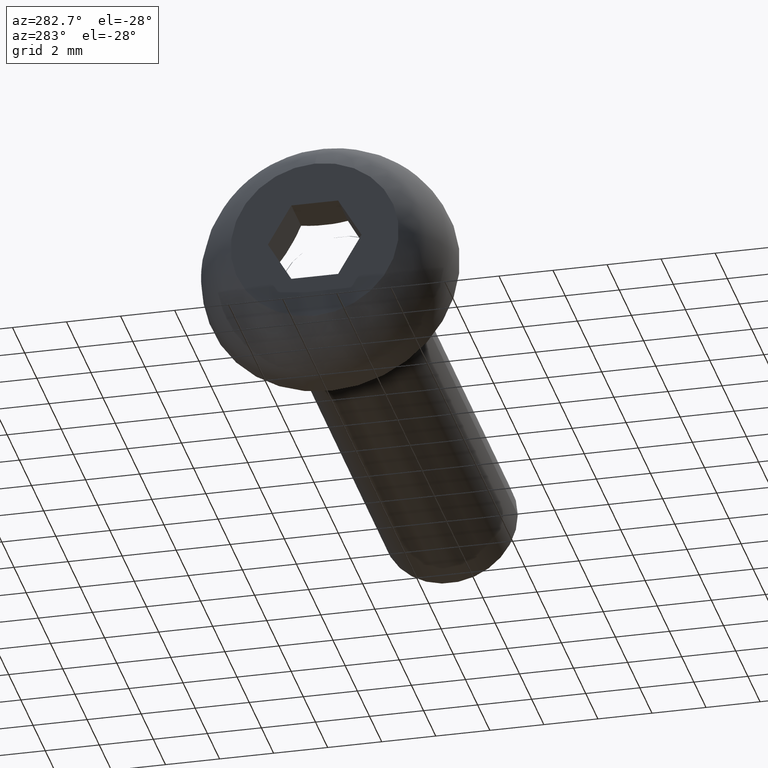
[diagram: clean part render]
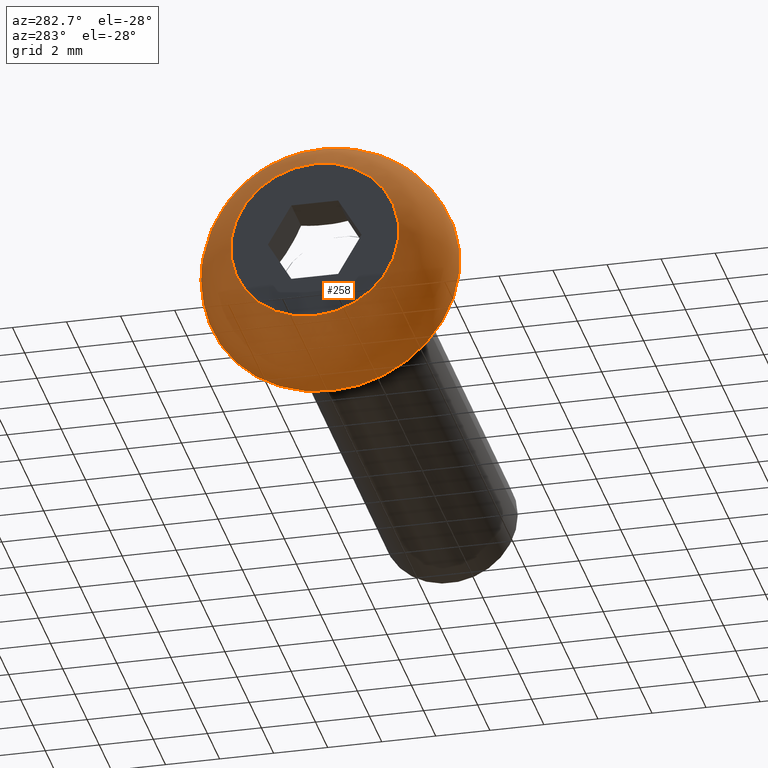
[diagram: same view with one face highlighted and labeled with its STEP entity id]
A machine part, auxiliary view. The second image highlights one B-rep face of the part: STEP entity #258.
In plain terms, the highlighted face is a freeform B-spline surface patch.
Its self-contained STEP definition (entity closure, byte-faithful):
#24=CIRCLE('',#298,4.75);
#25=CIRCLE('',#299,3.125);
#26=CIRCLE('',#300,3.10929276087974);
#36=(
BOUNDED_SURFACE()
B_SPLINE_SURFACE(2,2,((#444,#445,#446,#447,#448,#449,#450,#451,#452),(#453,
#454,#455,#456,#457,#458,#459,#460,#461),(#462,#463,#464,#465,#466,#467,
#468,#469,#470)),.UNSPECIFIED.,.F.,.T.,.F.)
B_SPLINE_SURFACE_WITH_KNOTS((3,3),(3,2,2,2,3),(-1.075862200454,1.03055320401404E-15),
(-3.14159265358979,-1.5707963267949,0.,1.5707963267949,3.14159265358979),
 .UNSPECIFIED.)
GEOMETRIC_REPRESENTATION_ITEM()
RATIONAL_B_SPLINE_SURFACE(((1.,0.707106781186548,1.,0.707106781186548,1.,
0.707106781186548,1.,0.707106781186548,1.),(0.85877054079699,0.60724247288079,
0.85877054079699,0.60724247288079,0.85877054079699,0.60724247288079,0.85877054079699,
0.60724247288079,0.85877054079699),(1.,0.707106781186548,1.,0.707106781186548,
1.,0.707106781186548,1.,0.707106781186548,1.)))
REPRESENTATION_ITEM('')
SURFACE()
);
#43=FACE_OUTER_BOUND('',#60,.T.);
#60=EDGE_LOOP('',(#196,#197,#198,#199));
#126=VERTEX_POINT('',#471);
#127=VERTEX_POINT('',#473);
#155=EDGE_CURVE('',#126,#126,#24,.T.);
#156=EDGE_CURVE('',#126,#127,#25,.T.);
#157=EDGE_CURVE('',#127,#127,#26,.T.);
#196=ORIENTED_EDGE('',*,*,#155,.F.);
#197=ORIENTED_EDGE('',*,*,#156,.T.);
#198=ORIENTED_EDGE('',*,*,#157,.T.);
#199=ORIENTED_EDGE('',*,*,#156,.F.);
#258=ADVANCED_FACE('',(#43),#36,.F.);
#298=AXIS2_PLACEMENT_3D('',#472,#346,#347);
#299=AXIS2_PLACEMENT_3D('',#474,#348,#349);
#300=AXIS2_PLACEMENT_3D('',#475,#350,#351);
#346=DIRECTION('center_axis',(1.,9.36676212591553E-17,0.));
#347=DIRECTION('ref_axis',(0.,1.,0.));
#348=DIRECTION('center_axis',(9.36676212591553E-17,-1.,-1.22464679914735E-16));
#349=DIRECTION('ref_axis',(1.14709752558771E-32,-1.22464679914735E-16,1.));
#350=DIRECTION('center_axis',(1.,9.36676212591553E-17,0.));
#351=DIRECTION('ref_axis',(0.,1.,0.));
#444=CARTESIAN_POINT('Ctrl Pts',(-2.75,-2.2004762515567E-15,3.10929276087974));
#445=CARTESIAN_POINT('Ctrl Pts',(-2.75,-3.10929276087974,3.10929276087974));
#446=CARTESIAN_POINT('Ctrl Pts',(-2.75,-3.10929276087974,0.));
#447=CARTESIAN_POINT('Ctrl Pts',(-2.75,-3.10929276087974,-3.10929276087974));
#448=CARTESIAN_POINT('Ctrl Pts',(-2.75,-2.2004762515567E-15,-3.10929276087974));
#449=CARTESIAN_POINT('Ctrl Pts',(-2.75,3.10929276087974,-3.10929276087974));
#450=CARTESIAN_POINT('Ctrl Pts',(-2.75,3.10929276087974,0.));
#451=CARTESIAN_POINT('Ctrl Pts',(-2.75,3.10929276087974,3.10929276087974));
#452=CARTESIAN_POINT('Ctrl Pts',(-2.75,-2.2004762515567E-15,3.10929276087974));
#453=CARTESIAN_POINT('Ctrl Pts',(-1.86444004445484,-2.11752795703842E-15,
4.75));
#454=CARTESIAN_POINT('Ctrl Pts',(-1.86444004445484,-4.75,4.75));
#455=CARTESIAN_POINT('Ctrl Pts',(-1.86444004445484,-4.75000000000001,0.));
#456=CARTESIAN_POINT('Ctrl Pts',(-1.86444004445484,-4.75,-4.75));
#457=CARTESIAN_POINT('Ctrl Pts',(-1.86444004445484,-2.11752795703842E-15,
-4.75));
#458=CARTESIAN_POINT('Ctrl Pts',(-1.86444004445484,4.75,-4.75));
#459=CARTESIAN_POINT('Ctrl Pts',(-1.86444004445484,4.75,0.));
#460=CARTESIAN_POINT('Ctrl Pts',(-1.86444004445484,4.75,4.75));
#461=CARTESIAN_POINT('Ctrl Pts',(-1.86444004445484,-2.11752795703842E-15,
4.75));
#462=CARTESIAN_POINT('Ctrl Pts',(3.22047876254388E-15,-1.94289029309402E-15,
4.75));
#463=CARTESIAN_POINT('Ctrl Pts',(3.66539996352487E-15,-4.75,4.75));
#464=CARTESIAN_POINT('Ctrl Pts',(3.66539996352487E-15,-4.75,0.));
#465=CARTESIAN_POINT('Ctrl Pts',(3.66539996352487E-15,-4.75,-4.75));
#466=CARTESIAN_POINT('Ctrl Pts',(3.22047876254388E-15,-1.94289029309402E-15,
-4.75));
#467=CARTESIAN_POINT('Ctrl Pts',(2.77555756156289E-15,4.75,-4.75));
#468=CARTESIAN_POINT('Ctrl Pts',(2.77555756156289E-15,4.75,0.));
#469=CARTESIAN_POINT('Ctrl Pts',(2.77555756156289E-15,4.75,4.75));
#470=CARTESIAN_POINT('Ctrl Pts',(3.22047876254388E-15,-1.94289029309402E-15,
4.75));
#471=CARTESIAN_POINT('',(2.77555756156289E-15,-2.52459752268902E-15,4.75));
#472=CARTESIAN_POINT('Origin',(2.77555756156289E-15,-1.87335242518311E-15,
0.));
#473=CARTESIAN_POINT('',(-2.75,-2.58125479427904E-15,3.10929276087974));
#474=CARTESIAN_POINT('Origin',(1.86403347908003E-32,-2.14189539795547E-15,
1.625));
#475=CARTESIAN_POINT('Origin',(-2.75,-2.13093838364578E-15,0.));